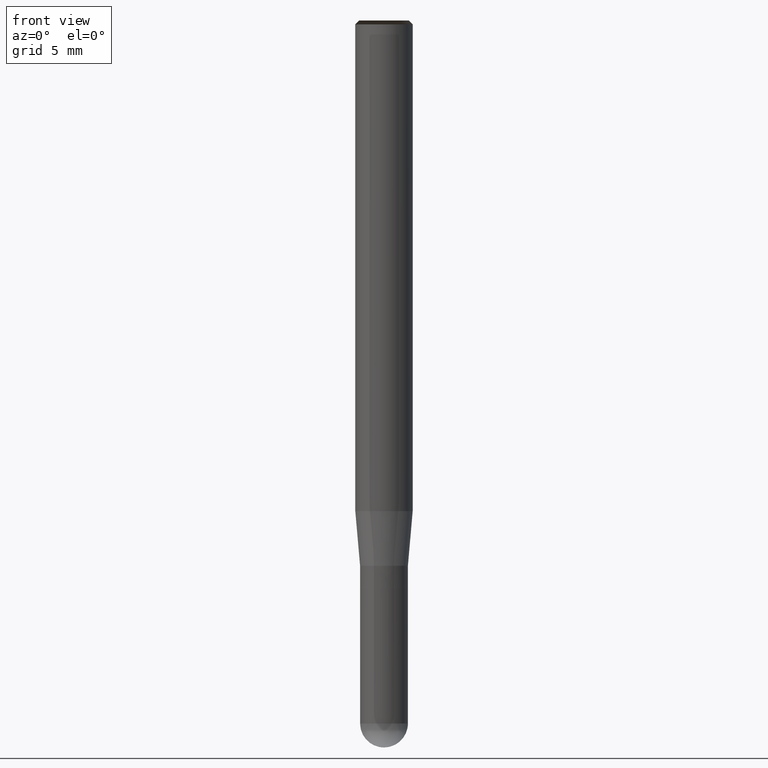
[diagram: clean part render]
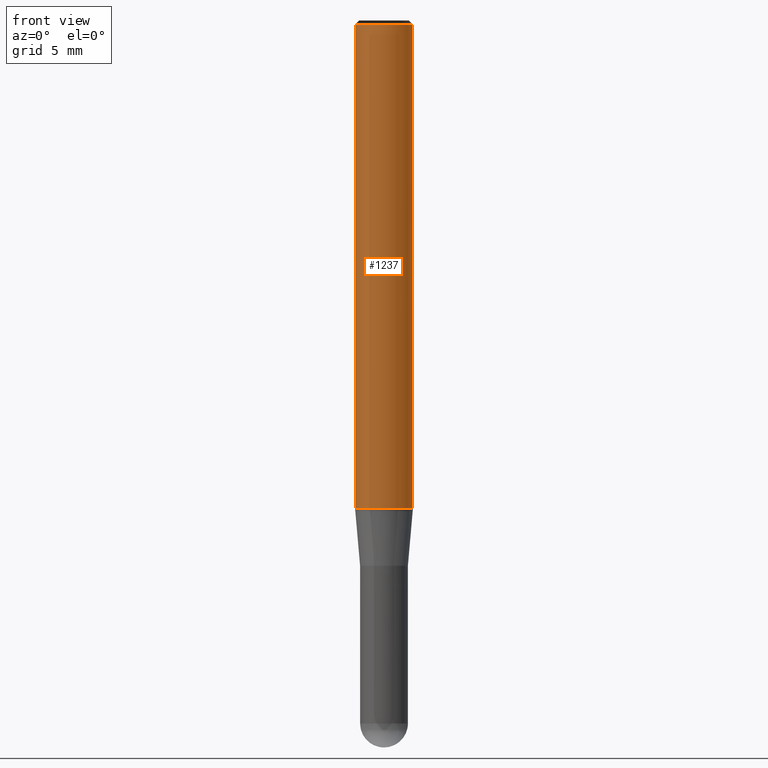
[diagram: same view with one face highlighted and labeled with its STEP entity id]
A machine part, front view. The second image highlights one B-rep face of the part: STEP entity #1237.
In plain terms, the highlighted face is a freeform B-spline surface patch.
Its self-contained STEP definition (entity closure, byte-faithful):
#864=CARTESIAN_POINT('',(1.5,0.0,0.0));
#868=CARTESIAN_POINT('',(-1.5,0.0,0.0));
#869=CARTESIAN_POINT('',(1.5,0.0,25.3));
#873=CARTESIAN_POINT('',(-1.5,0.0,25.3));
#886=CARTESIAN_POINT('',(-1.5,-1.5,0.0));
#887=CARTESIAN_POINT('',(0.0,-1.5,0.0));
#888=CARTESIAN_POINT('',(1.5,-1.5,0.0));
#889=CARTESIAN_POINT('',(-1.5,-1.5,25.3));
#890=CARTESIAN_POINT('',(0.0,-1.5,25.3));
#891=CARTESIAN_POINT('',(1.5,-1.5,25.3));
#1218=(
BOUNDED_SURFACE()
B_SPLINE_SURFACE(1,2,(
(#868,#886,#887,#888,#864),
(#873,#889,#890,#891,#869)
), .UNSPECIFIED.,.F.,.F.,.F.)
B_SPLINE_SURFACE_WITH_KNOTS((2,2),(3,2,3),(
0.0,1.0),(
0.0,0.5,1.0), .UNSPECIFIED.)
GEOMETRIC_REPRESENTATION_ITEM()
RATIONAL_B_SPLINE_SURFACE(((1.0,0.707106781187,1.0,0.707106781187,1.0),
(1.0,0.707106781187,1.0,0.707106781187,1.0)
))
REPRESENTATION_ITEM('')
SURFACE()
);
#1219=(
BOUNDED_CURVE()
B_SPLINE_CURVE(2,(#864,#888,#887,#886,#868),.UNSPECIFIED.,.F.,.F.)
B_SPLINE_CURVE_WITH_KNOTS((3,2,3),
(0.0,0.5,1.0),.UNSPECIFIED.)
CURVE()
GEOMETRIC_REPRESENTATION_ITEM()
RATIONAL_B_SPLINE_CURVE((1.0,0.707106781187,1.0,0.707106781187,1.0))
REPRESENTATION_ITEM('')
);
#1220=(
BOUNDED_CURVE()
B_SPLINE_CURVE(1,(#868,#873),.UNSPECIFIED.,.F.,.F.)
B_SPLINE_CURVE_WITH_KNOTS((2,2),
(0.0,1.0),.UNSPECIFIED.)
CURVE()
GEOMETRIC_REPRESENTATION_ITEM()
RATIONAL_B_SPLINE_CURVE((1.0,1.0))
REPRESENTATION_ITEM('')
);
#1221=(
BOUNDED_CURVE()
B_SPLINE_CURVE(2,(#873,#889,#890,#891,#869),.UNSPECIFIED.,.F.,.F.)
B_SPLINE_CURVE_WITH_KNOTS((3,2,3),
(0.0,0.5,1.0),.UNSPECIFIED.)
CURVE()
GEOMETRIC_REPRESENTATION_ITEM()
RATIONAL_B_SPLINE_CURVE((1.0,0.707106781187,1.0,0.707106781187,1.0))
REPRESENTATION_ITEM('')
);
#1222=(
BOUNDED_CURVE()
B_SPLINE_CURVE(1,(#869,#864),.UNSPECIFIED.,.F.,.F.)
B_SPLINE_CURVE_WITH_KNOTS((2,2),
(0.0,1.0),.UNSPECIFIED.)
CURVE()
GEOMETRIC_REPRESENTATION_ITEM()
RATIONAL_B_SPLINE_CURVE((1.0,1.0))
REPRESENTATION_ITEM('')
);
#1223=VERTEX_POINT('',#864);
#1224=VERTEX_POINT('',#868);
#1225=VERTEX_POINT('',#869);
#1226=VERTEX_POINT('',#873);
#1227=EDGE_CURVE('',#1223,#1224,#1219,.T.);
#1228=EDGE_CURVE('',#1224,#1226,#1220,.T.);
#1229=EDGE_CURVE('',#1226,#1225,#1221,.T.);
#1230=EDGE_CURVE('',#1225,#1223,#1222,.T.);
#1231=ORIENTED_EDGE('',*,*,#1227,.T.);
#1232=ORIENTED_EDGE('',*,*,#1228,.T.);
#1233=ORIENTED_EDGE('',*,*,#1229,.T.);
#1234=ORIENTED_EDGE('',*,*,#1230,.T.);
#1235=EDGE_LOOP('',(#1231,#1232,#1233,#1234));
#1236=FACE_OUTER_BOUND('',#1235,.T.);
#1237=ADVANCED_FACE('',(#1236),#1218,.T.);